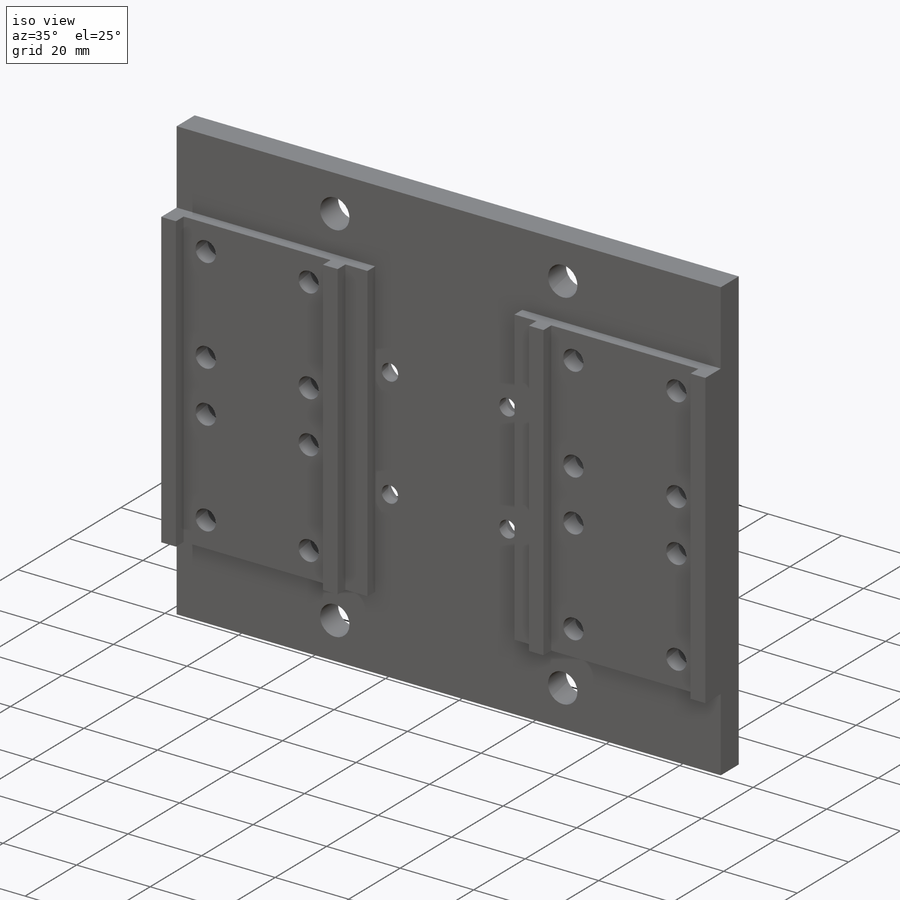
[diagram: iso view]
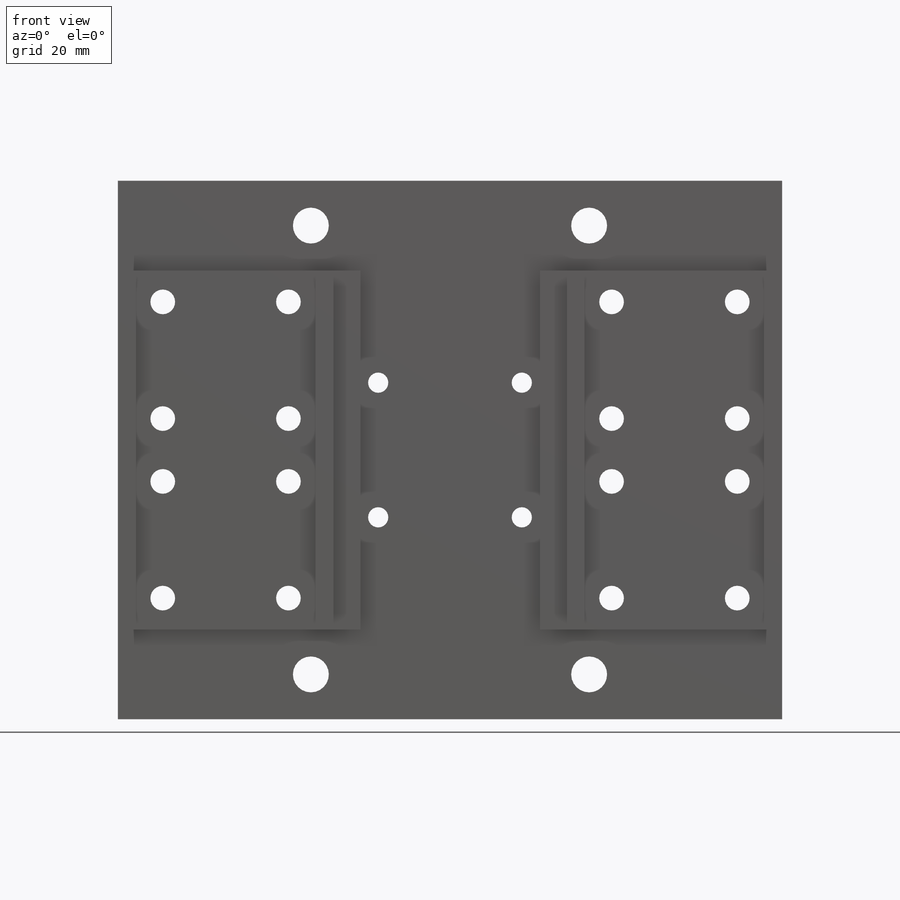
[diagram: front view]
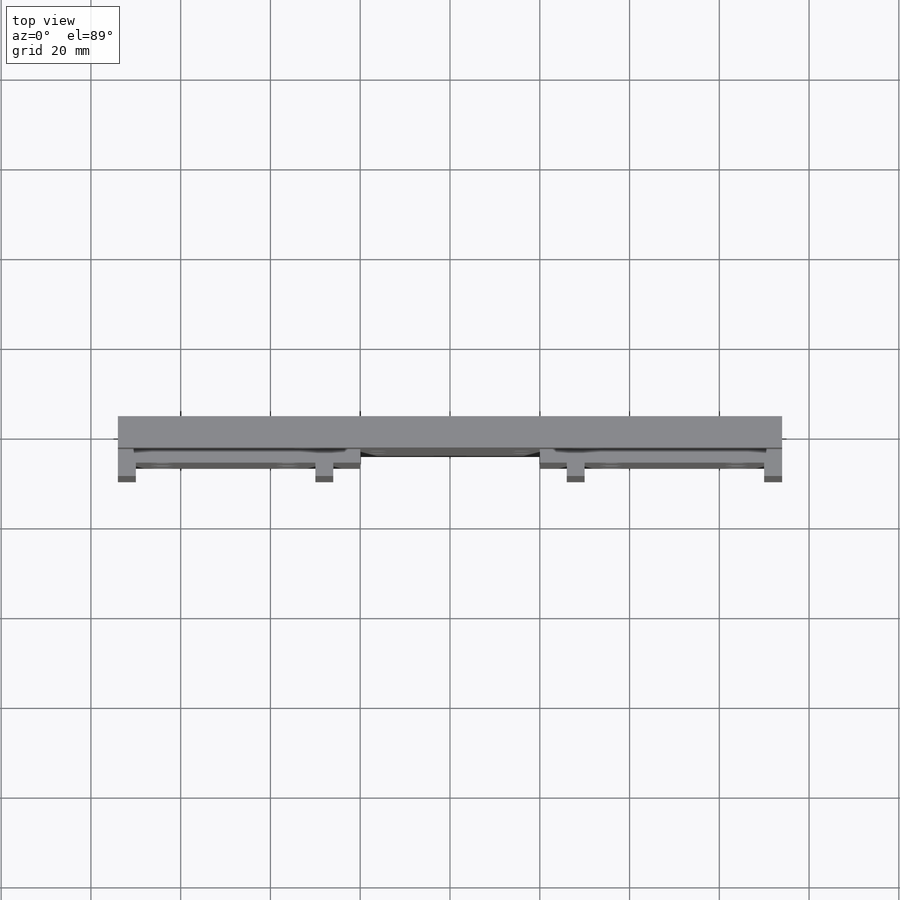
[diagram: top view]
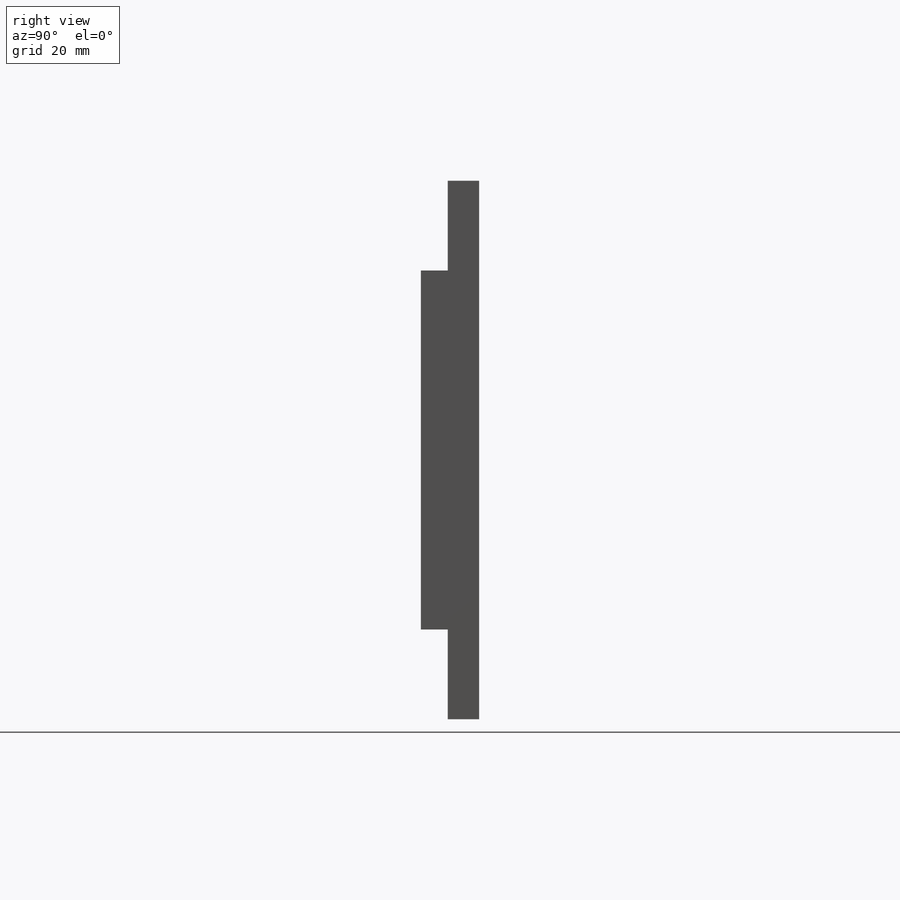
[diagram: right view]
SOLIDWORKS PART (.sldprt)
format: sldprt  version: not decoded by parser v0  size: 630,784 bytes
history: native  units: mm
features: sketch x9, extrude x4, plane x3, hole x2, material x1, cut_extrude x1 (+10 scaffold rows collapsed)
feature tree (30):
  scaffold x10  (default folders/planes/origin — collapsed)
  material  "Matériau <non spécifié>"
  plane  "Plan de face"
  plane  "Plan de dessus"
  plane  "Plan de droite"
  sketch  "Esquisse1"  dims[c1.D9=5.0mm c1.D10=5.0mm c1.D11=5.0mm c1.D12=5.0mm c1.D13=5.0mm c1.D14=5.0mm c1.D15=5.0mm c1.D16=5.0mm c1.D26=6.0mm c1.D27=6.0mm c1.D31=6.0mm c1.D32=6.0mm c2.D27=9.0mm c2.D30=9.0mm c2.D33=4.0mm c2.D34=4.0mm c2.D41=4.0mm c2.D42=4.0mm c2.D44=4.0mm c2.D46=4.0mm c3.D30=5.0mm c3.D31=5.0mm c3.D32=5.0mm c3.D36=5.0mm c3.D37=5.0mm c3.D38=5.0mm c3.D39=5.0mm c3.D47=5.0mm c3.D1=148.0mm c3.D2=120.0mm c3.D3=30.0mm c3.D4=30.0mm c3.D5=40.0mm c3.D6=40.0mm c3.D7=10.0mm c3.D8=10.0mm c3.D9=40.12mm c3.D17=26.0mm c3.D18=28.0mm c3.D19=6.0mm c3.D20=27.0mm c3.D21=28.0mm c3.D22=26.0mm c3.D23=6.0mm c3.D24=27.0mm c3.D25=20.0mm c3.D28=26.4mm c3.D29=6.8mm c4.D30=20.0mm c4.D33=26.4mm c4.D34=6.8mm c4.D35=27.0mm c4.D36=27.0mm c4.D37=27.0mm c4.D38=150.0mm c4.D39=26.0mm c5.D38=20.0mm c5.D40=120.0mm c5.D4=20.0mm c6.D40=74.0mm c6.D25=28.0mm c6.D26=32.0mm c6.D28=28.0mm c6.D29=32.0mm c6.D31=5.0mm c6.D32=5.0mm c6.D43=45.0mm c6.D44=45.0mm c6.D45=45.0mm c6.D46=45.0mm c6.D5=30.0mm c6.D6=16.0mm c6.D7=40.0mm c6.D8=20.0mm c6.D19=10.0mm c6.D23=10.0mm c6.D24=14.0mm c7.D25=14.0mm c7.D26=20.0mm c7.D27=20.0mm c7.D5=16.0mm c7.D28=27.0mm c7.D29=26.0mm c7.D30=14.0mm c7.D48=14.0mm]
  extrude  "Extrusion1"  Depth=4mm
  sketch  "Esquisse4"  dims[D1=40.0mm D2=20.0mm D3=80.0mm D4=80.0mm D5=40.0mm D6=40.0mm]
  extrude  "Boss.-Extru.1"  Depth=3mm
  sketch  "Esquisse6"
  extrude  "Boss.-Extru.2"  Depth=3mm
  hole  "Chambrage pour vis à tête hexagonale M41"  Diameter=4.5mm Depth=10.000025mm
  sketch  "Esquisse8"  dims[c1.D1=27.0mm c1.D2=~69.397739mm c2.D1=45.0mm c2.D2=45.0mm c2.D3=45.0mm c2.D4=45.0mm c2.D5=16.0mm c2.D6=16.0mm c2.D7=16.0mm c2.D8=16.0mm]
  sketch  "Esquisse7"  dims[hole-wizard template sketch: 42 standard entries collapsed; hole parameters kept: c12.Profondeur du perçage jusqu'au prochain=~10.000025mm c12.Diamètre du chambrage=10.0mm c12.Profondeur du chambrage=4.4mm]
  hole  "Chambrage pour vis à tête hexagonale M51"  Diameter=5.5mm Depth=10.000025mm
  sketch  "Esquisse10"  dims[c1.D1=28.0mm c1.D2=28.0mm c1.D3=28.0mm c1.D4=28.0mm c1.D5=26.0mm c1.D6=26.0mm c1.D7=26.0mm c1.D8=26.0mm c1.D9=~23.966081mm c1.D10=80.0mm c2.D9=30.0mm c2.D10=30.0mm c2.D11=6.0mm c2.D12=6.0mm c2.D13=6.0mm c2.D14=6.0mm c2.D15=13.0mm c2.D16=13.0mm c2.D17=13.0mm c2.D18=13.0mm c3.D15=33.0mm c3.D16=33.0mm c3.D17=33.0mm c3.D18=33.0mm c3.D19=26.0mm c3.D20=26.0mm c3.D21=26.0mm c3.D22=26.0mm c3.D23=28.0mm c3.D24=28.0mm c3.D25=28.0mm c3.D26=28.0mm c3.D27=33.0mm c3.D28=33.0mm c3.D29=6.0mm c3.D30=6.0mm]
  sketch  "Esquisse9"  dims[hole-wizard template sketch: 42 standard entries collapsed; hole parameters kept: c12.Profondeur du perçage jusqu'au prochain=~10.000025mm c12.Diamètre du chambrage=11.0mm c12.Profondeur du chambrage=5.4mm]
  sketch  "Esquisse11"  dims[c1.D1=4.0mm c1.D2=3.0mm c1.D3=4.0mm c1.D4=4.0mm c1.D5=30.0mm c1.D6=30.0mm c2.D2=4.0mm c2.D5=30.0mm c2.D7=41.0mm]
  extrude  "Boss.-Extru.3"  Depth=3mm
  sketch  "Esquisse3"  dims[c1.D4=~9.380983mm c1.D9=~10.43461mm c1.D10=~11.702274mm c1.D11=8.0mm c1.D12=8.0mm c1.D13=8.0mm c1.D14=8.0mm c2.D10=8.0mm c2.D8=8.0mm c2.D1=10.0mm c2.D2=10.0mm c2.D3=10.0mm c2.D4=10.0mm c2.D5=80.0mm c2.D6=44.0mm c2.D7=10.0mm c3.D8=10.0mm c3.D9=10.0mm c3.D10=10.0mm c3.D15=30.0mm c3.D6=40.0mm c3.D5=43.0mm c4.D6=43.0mm c4.D7=10.0mm c4.D3=100.0mm c4.D4=100.0mm c5.D7=43.0mm c5.D8=43.0mm c5.D9=10.0mm]
  cut_extrude  "Enlèv. mat.-Extru.2"  [1 undecoded]
decode coverage: 14 of 16 modeling features carry decoded parameters
note: ~ marks probable driven/reference dimensions
note: 1 parameter value undecoded
note: suppression state not decoded; provenance and decode notes live in map.json
